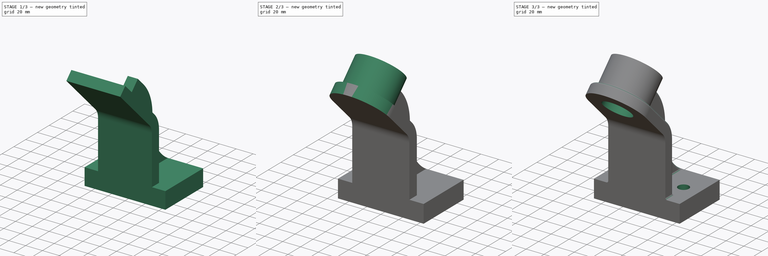
[diagram: build sequence overview — one tinted view per stage of 3, left to right]
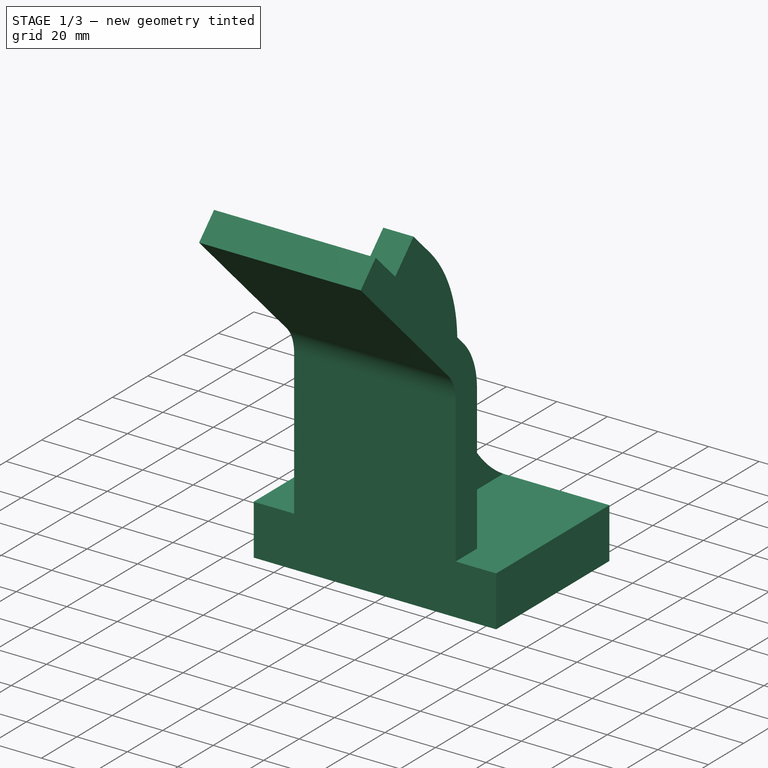
[diagram: stage 1 of 3 — iso view after this stage's code; geometry added in this stage tinted green]
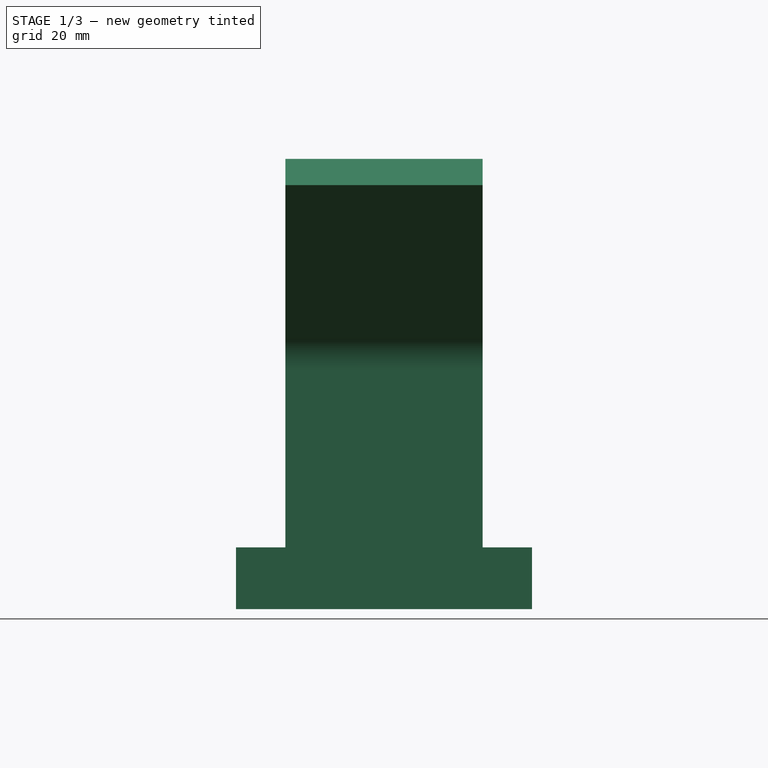
[diagram: stage 1 of 3 — front view after this stage's code; geometry added in this stage tinted green]
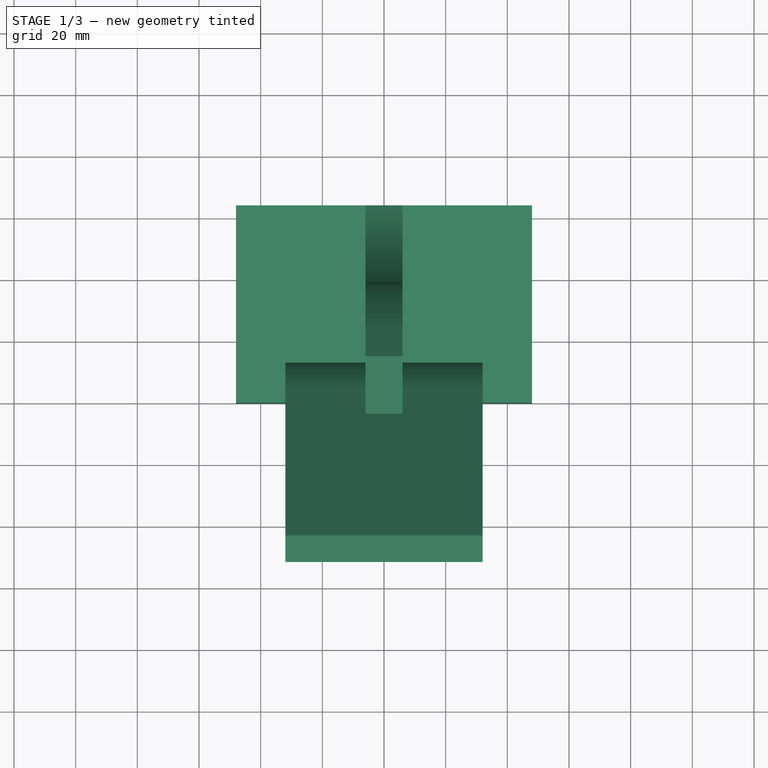
[diagram: stage 1 of 3 — top view after this stage's code; geometry added in this stage tinted green]
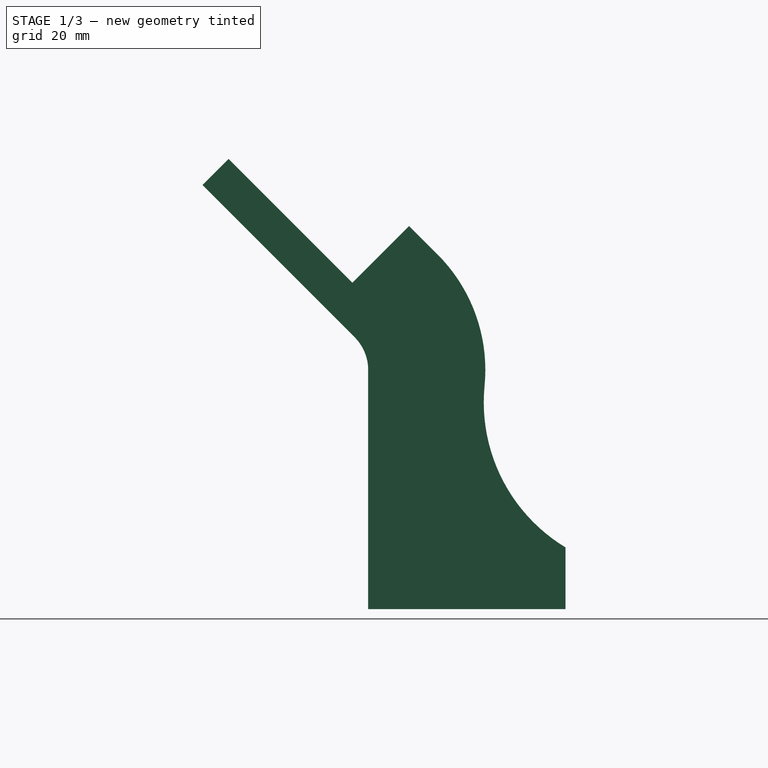
[diagram: stage 1 of 3 — right view after this stage's code; geometry added in this stage tinted green]
FCSTD DOCUMENT  (FreeCAD 1.0R39319 (Git))
Label: Mania2001-NEW
License: All rights reserved
LicenseURL: https://en.wikipedia.org/wiki/All_rights_reserved
objects: Sketcher::SketchObject×7, PartDesign::Pad×4, PartDesign::Pocket×2, PartDesign::Fillet×1, PartDesign::Hole×1, PartDesign::Body×1
note: 39 computed .brp shape members not serialized (recipe doc carries the construction recipe); baked Part::Feature solids carry a one-line shape summary decoded from their .brp

FEATURE [Sketcher::SketchObject] Sketch
  ArcFitTolerance = 1e-06
  AttachmentSupport = -> [XY_Plane]
  FullyConstrained = true
  MakeInternals = false
  MapMode = 5
  sketch-geometry (4):
    g0: LineSegment StartX=-48 StartY=64 StartZ=0 EndX=-48 EndY=0 EndZ=0
    g1: LineSegment StartX=-48 StartY=0 StartZ=0 EndX=48 EndY=0 EndZ=0
    g2: LineSegment StartX=48 StartY=0 StartZ=0 EndX=48 EndY=64 EndZ=0
    g3: LineSegment StartX=48 StartY=64 StartZ=0 EndX=-48 EndY=64 EndZ=0
  constraints (11):
    c: Coincident(g0,g1)
    c: Coincident(g1,g2)
    c: Coincident(g2,g3)
    c: Coincident(g3,g0)
    c: Vertical(g0)
    c: Vertical(g2)
    c: Horizontal(g1)
    c: PointOnObject(g1,g-1)
    c: Symmetric(g2,g0,g-2)
    c: DistanceX(g3,g3) = 96
    c: DistanceY(g2,g2) = 64
FEATURE [PartDesign::Pad] Pad
  Direction = (0,0,1)
  Length = 20
  Length2 = 10
  Profile = -> Sketch
  ReferenceAxis = -> Sketch [N_Axis]
  Refine = true
  Suppressed = false
  Type = 0
FEATURE [Sketcher::SketchObject] Sketch001
  ArcFitTolerance = 1e-06
  AttachmentSupport = -> [YZ_Plane]
  ExternalGeometry = -> [Pad]
  FullyConstrained = true
  MakeInternals = false
  MapMode = 5
  Placement = pos=(0,0,0) rot=(0.57735,0.57735,0.57735;2.0944rad)
  sketch-geometry (10):
    g0: LineSegment StartX=0 StartY=20 StartZ=0 EndX=-5.68e-14 EndY=77.5614 EndZ=0
    g1: ArcOfCircle CenterX=-15 CenterY=77.5614 CenterZ=0 NormalX=0 NormalY=0 NormalZ=1 AngleXU=0 Radius=15 StartAngle=1.8e-15 EndAngle=0.785398
    g2: LineSegment StartX=-4.3934 StartY=88.168 StartZ=0 EndX=-53.7401 EndY=137.515 EndZ=0
    g3: LineSegment StartX=-53.7401 StartY=137.515 StartZ=0 EndX=-45.2548 EndY=146 EndZ=0
    g4: LineSegment StartX=-45.2548 StartY=146 StartZ=0 EndX=4.09188 EndY=96.6533 EndZ=0
    g5: ArcOfCircle CenterX=-15 CenterY=77.5614 CenterZ=0 NormalX=0 NormalY=0 NormalZ=1 AngleXU=0 Radius=27 StartAngle=1.013e-13 EndAngle=0.785398
    g6: LineSegment StartX=12 StartY=77.5614 StartZ=0 EndX=12 EndY=20 EndZ=0
    g7: LineSegment StartX=12 StartY=20 StartZ=0 EndX=0 EndY=20 EndZ=0
    g8: LineSegment [constr] StartX=0 StartY=20 StartZ=0 EndX=0 EndY=146 EndZ=0
    g9: LineSegment [constr] StartX=0 StartY=146 StartZ=0 EndX=-31.1127 EndY=114.887 EndZ=0
  constraints (25):
    c: PointOnObject(g0,g-2)
    c: Tangent(g0,g1) = -1.5708
    c: Tangent(g1,g2) = -1.5708
    c: Perpendicular(g2,g3) = 4.71239
    c: Coincident(g3,g4)
    c: Tangent(g4,g5) = 1.5708
    c: Coincident(g6,g7)
    c: Coincident(g7,g-4)
    c: Horizontal(g7)
    c: Tangent(g5,g6) = 1.5708
    c: DistanceX(g7,g7) = 12
    c: Parallel(g0,g6)
    c: Distance(g3,g3) = 12
    c: Coincident(g5,g1)
    c: Radius(g1) = 15
    c: Angle(g2,g-4) = 0.785398
    c: Coincident(g8,g7)
    c: PointOnObject(g8,g0)
    c: Coincident(g9,g8)
    c: Perpendicular(g4,g9)
    c: PointOnObject(g9,g2)
    c: Distance(g2,g9) = 32
    c: Distance(g9,g9) = 44
    c: DistanceY(g-1,g8) = 146
    c: Coincident(g7,g0)
FEATURE [PartDesign::Pad] Pad001
  BaseFeature = -> Pad
  Direction = (1,0,0)
  Length = 64
  Length2 = 10
  Midplane = true
  Profile = -> Sketch001
  ReferenceAxis = -> Sketch001 [N_Axis]
  Refine = true
  Suppressed = false
  Type = 0
FEATURE [Sketcher::SketchObject] Sketch002
  ArcFitTolerance = 1e-06
  AttachmentSupport = -> [YZ_Plane]
  ExternalGeometry = -> [Pad001]
  FullyConstrained = true
  MakeInternals = false
  MapMode = 5
  Placement = pos=(0,0,0) rot=(0.57735,0.57735,0.57735;2.0944rad)
  sketch-geometry (8):
    g0: LineSegment StartX=64 StartY=20 StartZ=0 EndX=12 EndY=20 EndZ=0
    g1: LineSegment StartX=12 StartY=20 StartZ=0 EndX=12 EndY=77.5614 EndZ=0
    g2: ArcOfCircle CenterX=-15 CenterY=77.5614 CenterZ=0 NormalX=0 NormalY=0 NormalZ=1 AngleXU=0 Radius=27 StartAngle=1.68e-14 EndAngle=0.785398
    g3: LineSegment StartX=4.09188 StartY=96.6533 StartZ=0 EndX=-5.10051 EndY=105.846 EndZ=0
    g4: LineSegment StartX=-5.10051 StartY=105.846 StartZ=0 EndX=13.2843 EndY=124.23 EndZ=0
    g5: LineSegment StartX=13.2843 StartY=124.23 StartZ=0 EndX=22.4767 EndY=115.038 EndZ=0
    g6: ArcOfCircle CenterX=-15 CenterY=77.5614 CenterZ=0 NormalX=0 NormalY=0 NormalZ=1 AngleXU=0 Radius=53 StartAngle=6.18568 EndAngle=7.06858
    g7: ArcOfCircle CenterX=92.487 CenterY=67.0477 CenterZ=0 NormalX=0 NormalY=0 NormalZ=1 AngleXU=0 Radius=55 StartAngle=3.04409 EndAngle=4.16794
  constraints (17):
    c: Coincident(g-6,g0)
    c: Coincident(g0,g-5)
    c: Coincident(g0,g1)
    c: Coincident(g1,g-5)
    c: Tangent(g1,g2) = -1.5708
    c: Coincident(g2,g-4)
    c: Tangent(g2,g3) = -1.5708
    c: Perpendicular(g3,g4) = 4.71239
    c: Coincident(g4,g5)
    c: Tangent(g5,g6) = 1.5708
    c: Tangent(g6,g7) = 1.5708
    c: Coincident(g7,g0)
    c: Coincident(g2,g6)
    c: Distance(g4,g4) = 26
    c: Parallel(g3,g5)
    c: Radius(g7) = 55
    c: Distance(g5,g5) = 13
FEATURE [PartDesign::Pad] Pad002
  BaseFeature = -> Pad001
  Direction = (1,0,0)
  Length = 12
  Length2 = 10
  Midplane = true
  Profile = -> Sketch002
  ReferenceAxis = -> Sketch002 [N_Axis]
  Refine = true
  Suppressed = false
  Type = 0
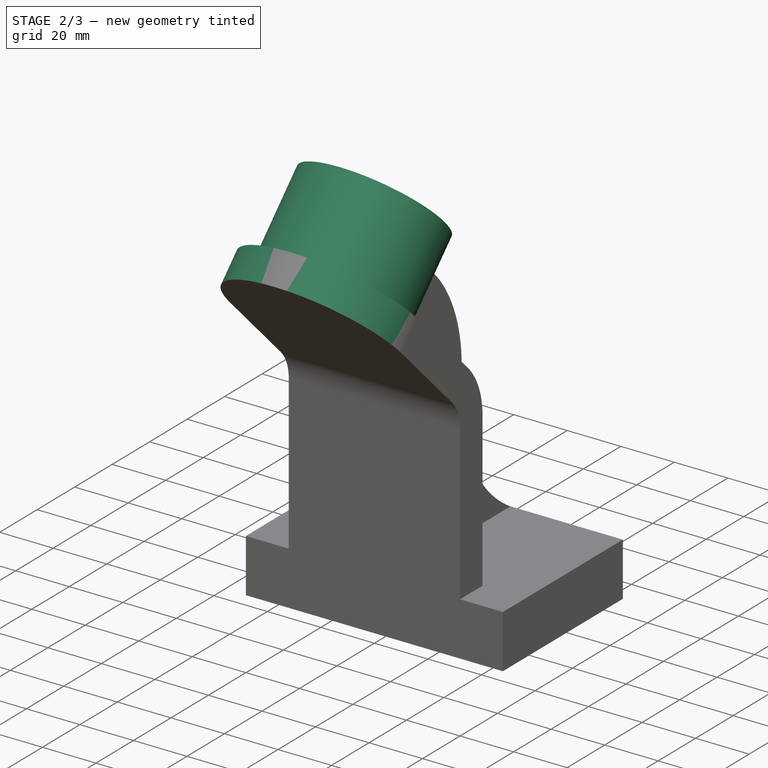
[diagram: stage 2 of 3 — iso view after this stage's code; geometry added in this stage tinted green]
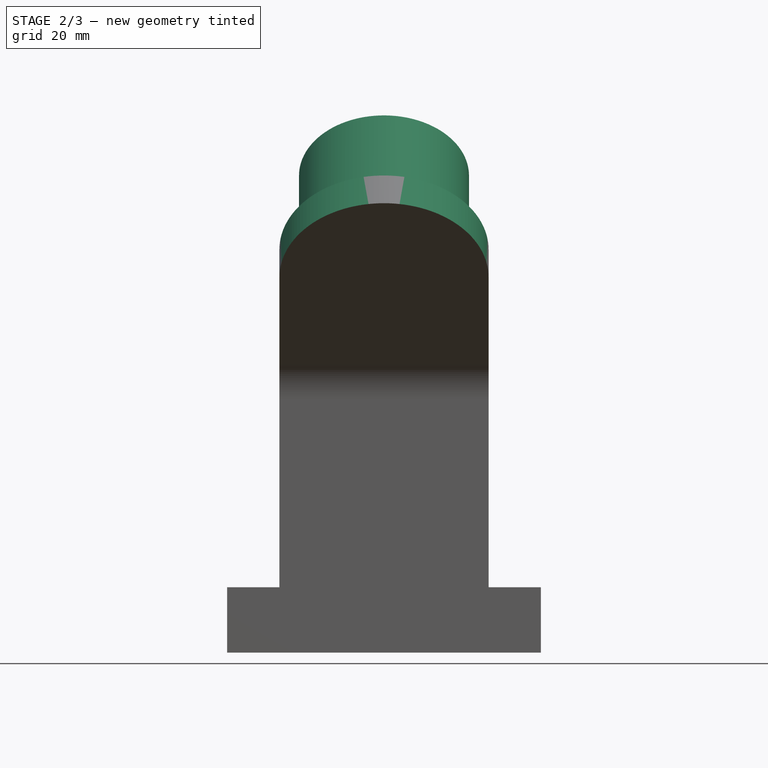
[diagram: stage 2 of 3 — front view after this stage's code; geometry added in this stage tinted green]
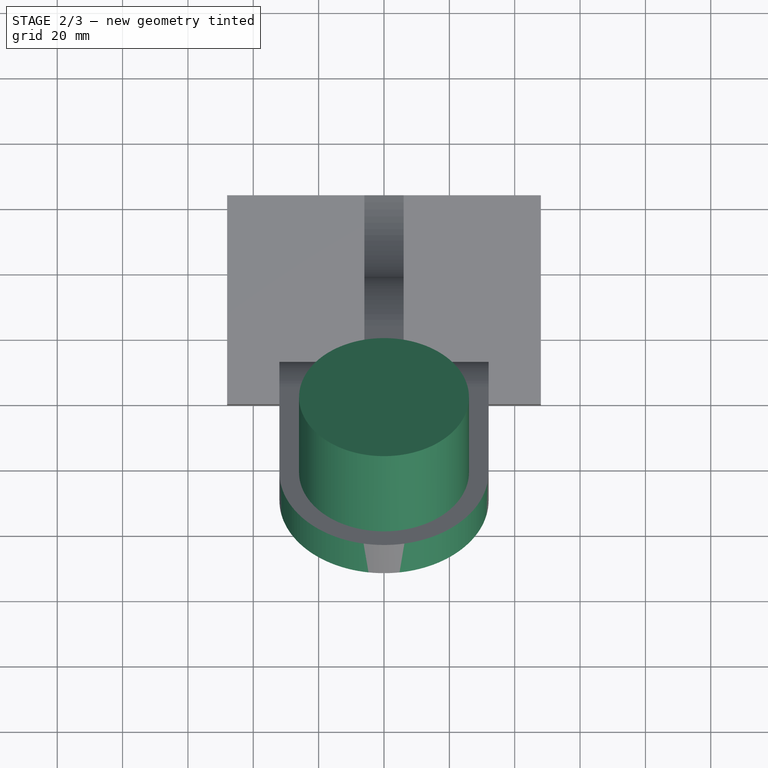
[diagram: stage 2 of 3 — top view after this stage's code; geometry added in this stage tinted green]
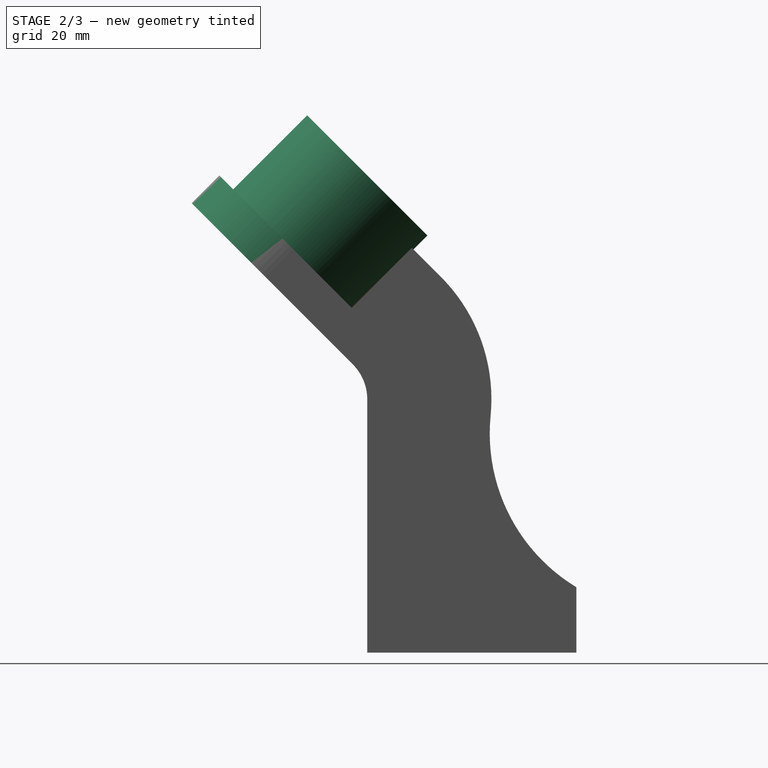
[diagram: stage 2 of 3 — right view after this stage's code; geometry added in this stage tinted green]
FEATURE [Sketcher::SketchObject] Sketch003
  ArcFitTolerance = 1e-06
  AttachmentSupport = -> [Pad002]
  ExternalGeometry = -> [Pad002]
  FullyConstrained = true
  MakeInternals = false
  MapMode = 5
  Placement = pos=(0,50.3726,50.3726) rot=(0,0.382683,0.92388;3.14159rad)
  sketch-geometry (1):
    g0: Circle CenterX=0 CenterY=103.238 CenterZ=0 NormalX=0 NormalY=0 NormalZ=1 AngleXU=0 Radius=26
  constraints (3):
    c: Diameter(g0) = 52
    c: PointOnObject(g0,g-2)
    c: Distance(g0,g-3) = 32
FEATURE [PartDesign::Pad] Pad003
  BaseFeature = -> Pad002
  Direction = (0,0.707107,0.707107)
  Length = 32
  Length2 = 10
  Profile = -> Sketch003
  ReferenceAxis = -> Sketch003 [N_Axis]
  Refine = true
  Suppressed = false
  Type = 0
FEATURE [Sketcher::SketchObject] Sketch004
  ArcFitTolerance = 1e-06
  AttachmentSupport = -> [Pad003]
  ExternalGeometry = -> [Pad003]
  FullyConstrained = true
  MakeInternals = false
  MapMode = 5
  Placement = pos=(0,50.3726,50.3726) rot=(0,0.382683,0.92388;3.14159rad)
  sketch-geometry (4):
    g0: ArcOfCircle CenterX=1.6e-15 CenterY=103.238 CenterZ=0 NormalX=0 NormalY=0 NormalZ=1 AngleXU=0 Radius=32 StartAngle=0 EndAngle=3.14159
    g1: LineSegment StartX=32 StartY=103.238 StartZ=0 EndX=32 EndY=143.238 EndZ=0
    g2: LineSegment StartX=32 StartY=143.238 StartZ=0 EndX=-32 EndY=143.238 EndZ=0
    g3: LineSegment StartX=-32 StartY=143.238 StartZ=0 EndX=-32 EndY=103.238 EndZ=0
  constraints (12):
    c: Radius(g0) = 32
    c: PointOnObject(g0,g-3)
    c: DistanceY(g0,g-5) = 32
    c: Tangent(g0,g-4) = 1.5708
    c: Coincident(g1,g2)
    c: Coincident(g2,g3)
    c: Horizontal(g2)
    c: Vertical(g1)
    c: Vertical(g3)
    c: Coincident(g3,g0)
    c: Coincident(g1,g0)
    c: DistanceY(g1,g1) = 40
FEATURE [PartDesign::Pocket] Pocket
  BaseFeature = -> Pad003
  Direction = (0,-0.707107,-0.707107)
  Length = 5
  Length2 = 5
  Profile = -> Sketch004
  ReferenceAxis = -> Sketch004 [N_Axis]
  Refine = true
  Suppressed = false
  Type = 1
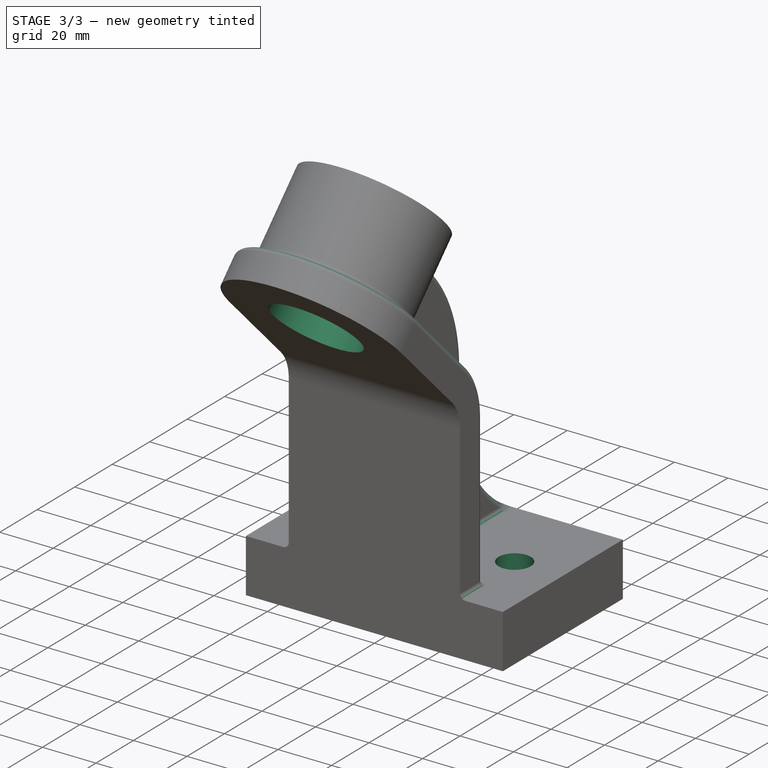
[diagram: stage 3 of 3 — iso view after this stage's code; geometry added in this stage tinted green]
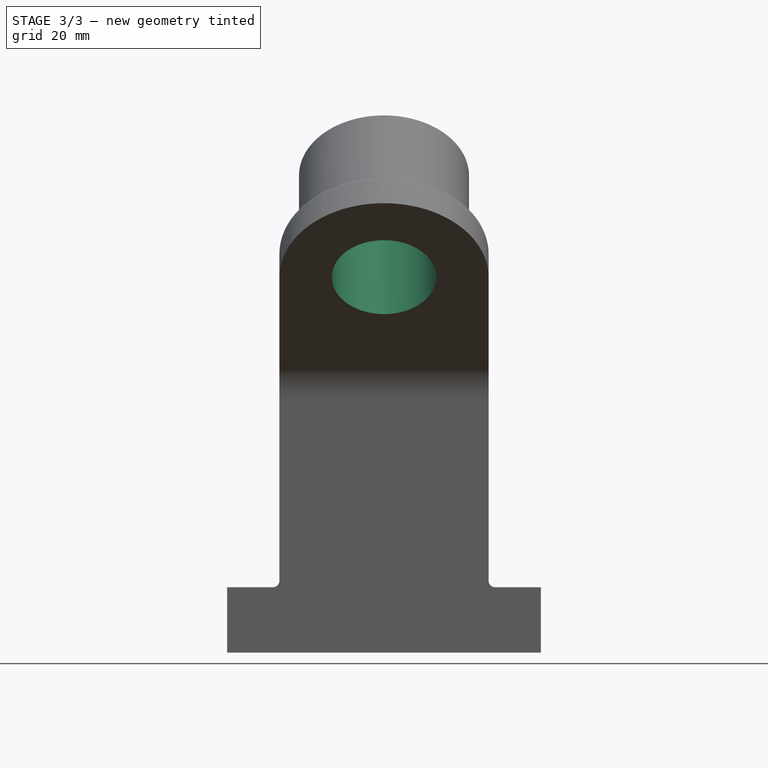
[diagram: stage 3 of 3 — front view after this stage's code; geometry added in this stage tinted green]
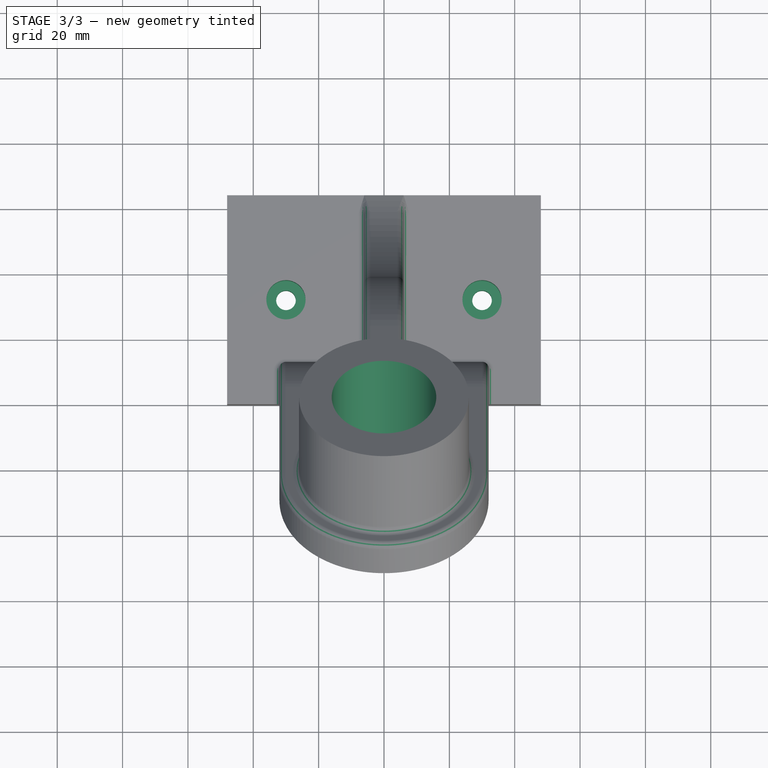
[diagram: stage 3 of 3 — top view after this stage's code; geometry added in this stage tinted green]
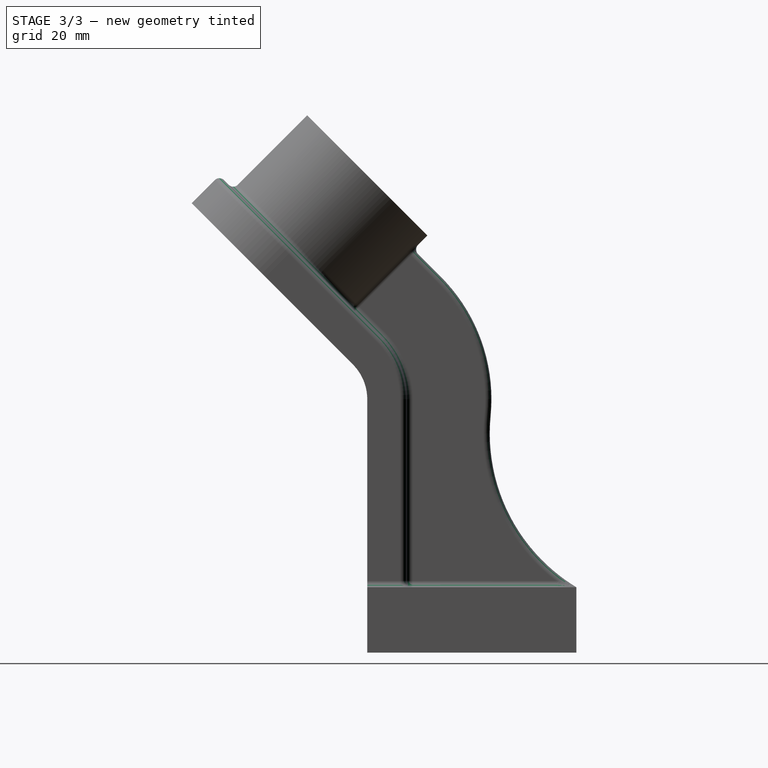
[diagram: stage 3 of 3 — right view after this stage's code; geometry added in this stage tinted green]
FEATURE [Sketcher::SketchObject] Sketch006
  ArcFitTolerance = 1e-06
  AttachmentSupport = -> [Pocket]
  ExternalGeometry = -> [Pocket]
  FullyConstrained = true
  MakeInternals = false
  MapMode = 5
  Placement = pos=(0,41.8873,41.8873) rot=(1,0,0;2.35619rad)
  sketch-geometry (1):
    g0: Circle CenterX=0 CenterY=103.238 CenterZ=0 NormalX=0 NormalY=0 NormalZ=1 AngleXU=0 Radius=16
  constraints (2):
    c: Diameter(g0) = 32
    c: Coincident(g0,g-3)
FEATURE [PartDesign::Pocket] Pocket001
  BaseFeature = -> Pocket
  Direction = (0,0.707107,0.707107)
  Length = 5
  Length2 = 5
  Profile = -> Sketch006
  ReferenceAxis = -> Sketch006 [N_Axis]
  Refine = true
  Suppressed = false
  Type = 1
FEATURE [PartDesign::Fillet] Fillet
  Base = -> Pocket001 [Edge63,Edge52,Edge44,Edge43,Edge51,Edge53,Edge24,Edge27,Edge45,Edge66,Edge26,Edge18,Edge41,Edge48,Edge60,Edge19,Edge23,Edge20,Edge22]
  BaseFeature = -> Pocket001
  Radius = 2
  Refine = true
  SupportTransform = false
  Suppressed = false
  UseAllEdges = false
FEATURE [Sketcher::SketchObject] Sketch007
  ArcFitTolerance = 1e-06
  AttachmentOffset = pos=(0,0,20) rot=(0,0,1;0rad)
  AttachmentSupport = -> [XY_Plane]
  FullyConstrained = true
  MakeInternals = false
  MapMode = 5
  Placement = pos=(0,0,20) rot=(0,0,1;0rad)
  sketch-geometry (2):
    g0: Circle CenterX=-30 CenterY=32 CenterZ=0 NormalX=0 NormalY=0 NormalZ=1 AngleXU=0 Radius=3
    g1: Circle CenterX=30 CenterY=32 CenterZ=0 NormalX=0 NormalY=0 NormalZ=1 AngleXU=0 Radius=3
  constraints (5):
    c: Diameter(g0) = 6
    c: Symmetric(g1,g0,g-2)
    c: DistanceX(g0,g1) = 60
    c: DistanceY(g-1,g1) = 32
    c: Equal(g1,g0)
FEATURE [PartDesign::Hole] Hole
  BaseFeature = -> Fillet
  CustomThreadClearance = 0
  Depth = 25
  DepthType = 0
  Diameter = 6
  DrillForDepth = false
  DrillPoint = 1
  DrillPointAngle = 118
  HoleCutCountersinkAngle = 90
  HoleCutCustomValues = false
  HoleCutDepth = 10
  HoleCutDiameter = 12
  HoleCutType = 1
  ModelThread = false
  Profile = -> Sketch007
  Refine = true
  Suppressed = false
  Tapered = false
  TaperedAngle = 90
  ThreadClass = 0
  ThreadDepth = 25
  ThreadDepthType = 0
  ThreadDirection = 0
  ThreadFit = 0
  ThreadSize = 0
  ThreadType = 0
  Threaded = false
  UseCustomThreadClearance = false
FEATURE [PartDesign::Body] Body
  AllowCompound = false
  Group = -> [Sketch,Pad,Sketch001,Pad001,Sketch002,Pad002,Sketch003,Pad003,Sketch004,Pocket,Sketch006,Pocket001,Fillet,Sketch007,Hole]
  Origin = -> Origin
  Tip = -> Hole
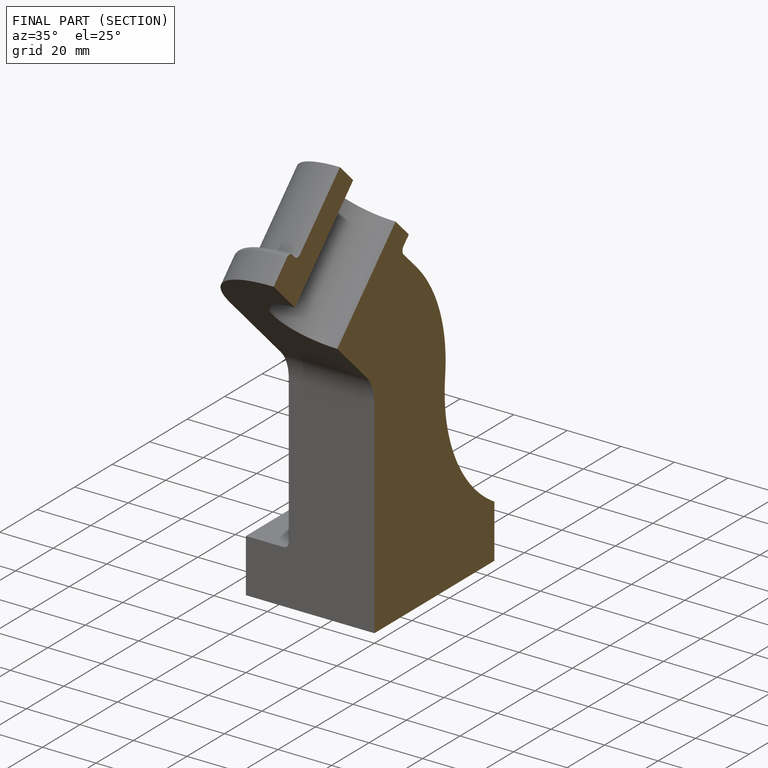
[diagram: finished part — half-section view (interior)]
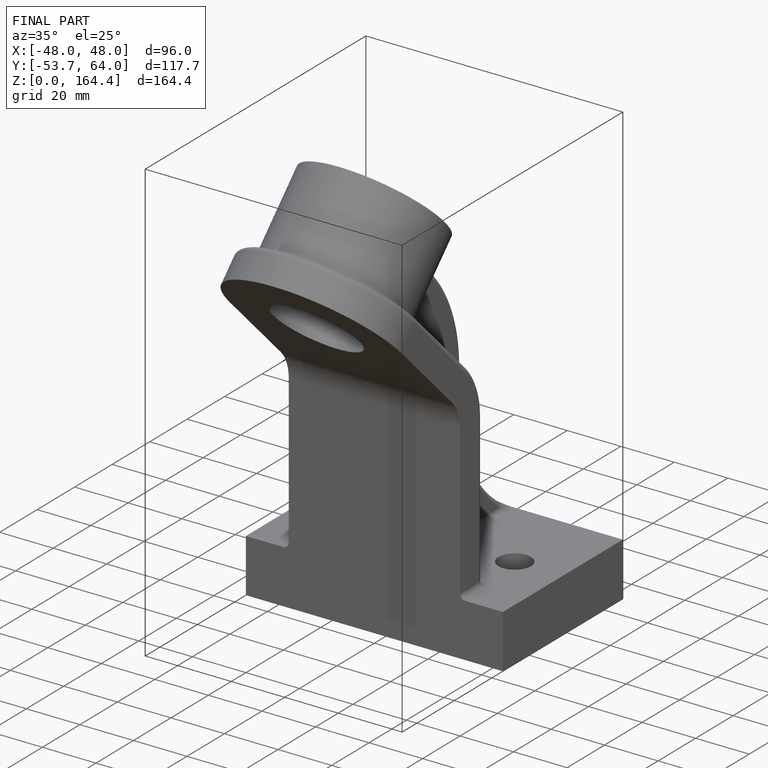
[diagram: finished part — iso view with bounding-box wireframe]
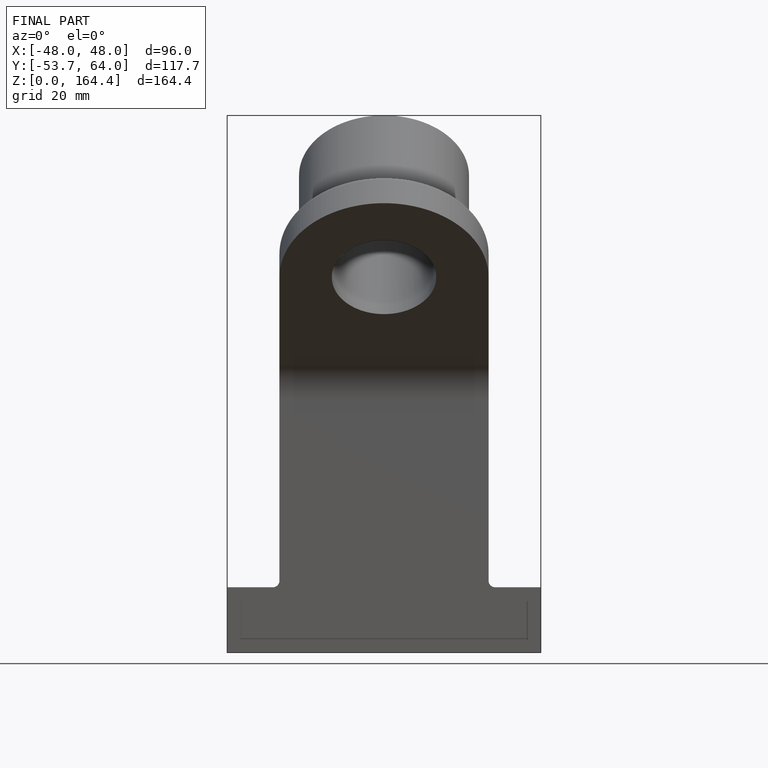
[diagram: finished part — front view with bounding-box wireframe]
